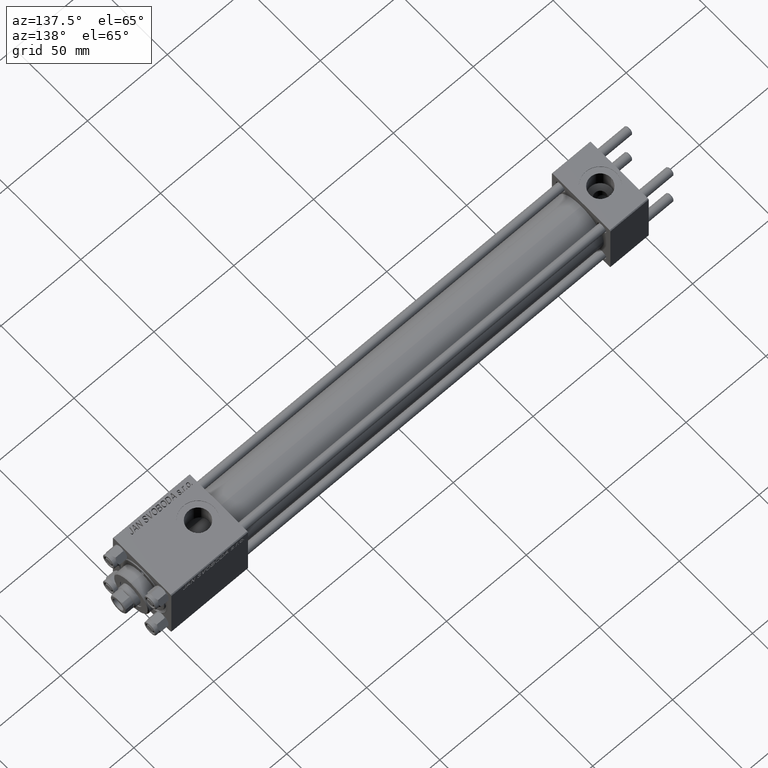
[diagram: clean part render]
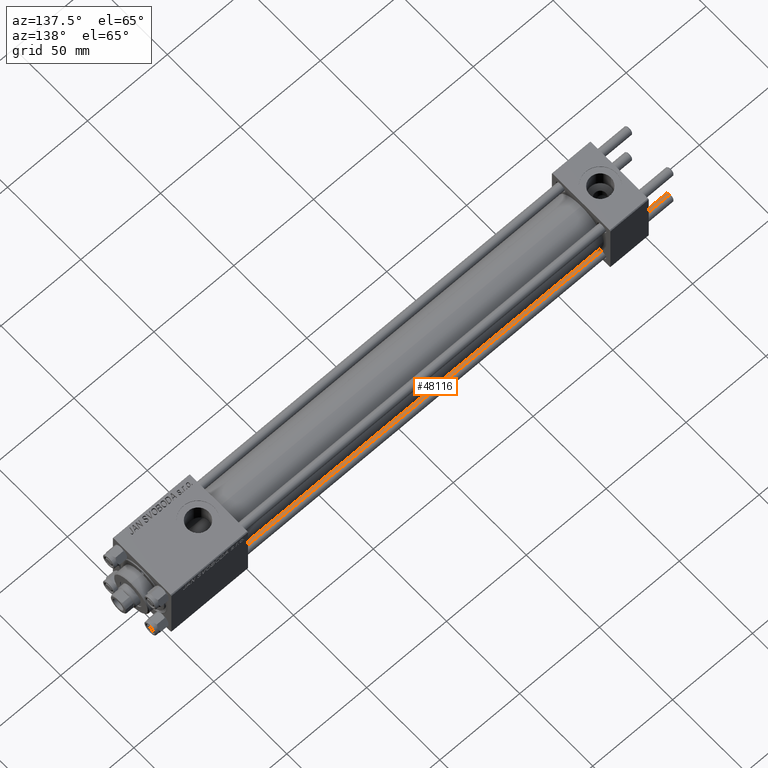
[diagram: same view with one face highlighted and labeled with its STEP entity id]
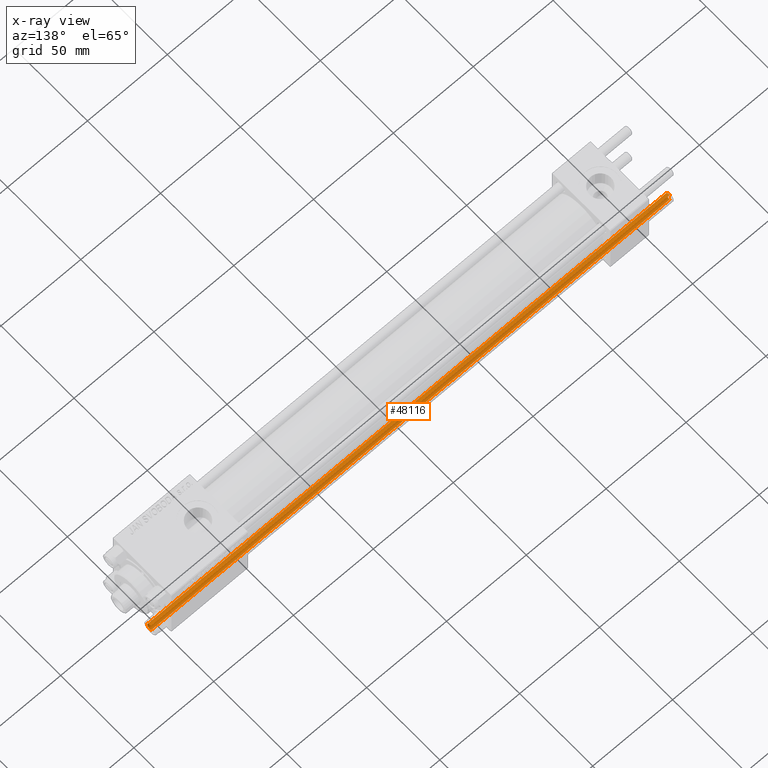
[diagram: x-ray of the same camera — body ghosted, the highlighted face saturated]
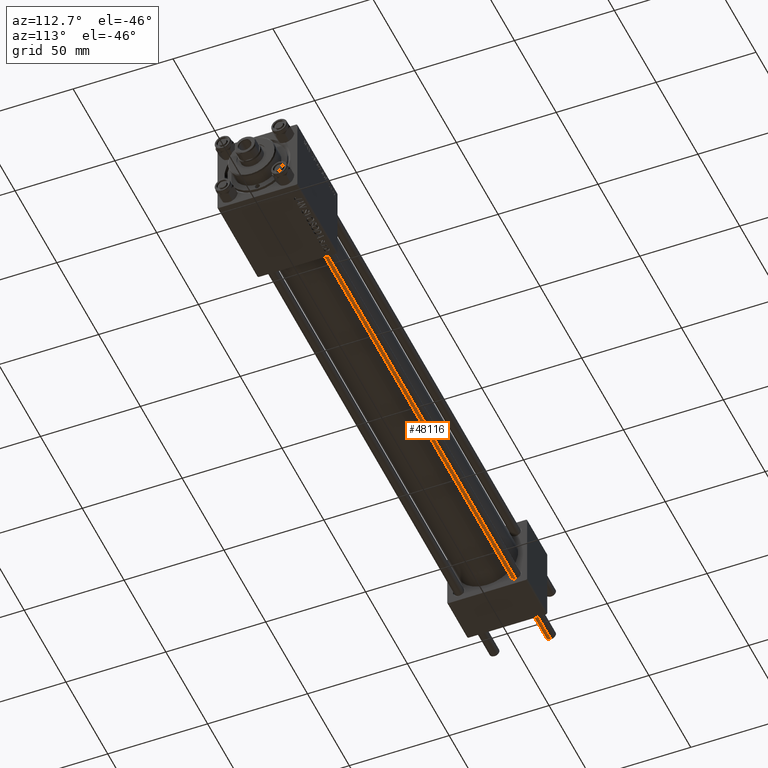
[diagram: same view with one face highlighted and labeled with its STEP entity id]
A machine part, auxiliary view. The second image highlights one B-rep face of the part: STEP entity #48116.
The next image is the same camera in x-ray: the body ghosted, the highlighted face saturated — about 0% of this face is hidden behind the body in this view.
A second angle (auxiliary view) of the same face is appended — the face is thin or edge-on in the first view.
In plain terms, the highlighted cylindrical surface (edge-blend (fillet) strip) has radius 2.5 mm, axis along (1, 0, -0).
Its self-contained STEP definition (entity closure, byte-faithful):
#1363 = EDGE_LOOP ( 'NONE', ( #3659, #15860, #46752, #2845 ) ) ;
#1957 = DIRECTION ( 'NONE',  ( -0.000000000000000000, -0.000000000000000000, -1.000000000000000000 ) ) ;
#2845 = ORIENTED_EDGE ( 'NONE', *, *, #13820, .T. ) ;
#3659 = ORIENTED_EDGE ( 'NONE', *, *, #48974, .F. ) ;
#4639 = DIRECTION ( 'NONE',  ( -0.000000000000000000, -0.000000000000000000, -1.000000000000000000 ) ) ;
#6271 = DIRECTION ( 'NONE',  ( 0.000000000000000000, 0.000000000000000000, -1.000000000000000000 ) ) ;
#8417 = FACE_OUTER_BOUND ( 'NONE', #1363, .T. ) ;
#8930 = CIRCLE ( 'NONE', #29886, 2.500000000000000000 ) ;
#9049 = LINE ( 'NONE', #28000, #12536 ) ;
#10930 = CARTESIAN_POINT ( 'NONE',  ( 2.500000000000000000, 3.061616997868383141E-16, 0.4999999999999449329 ) ) ;
#11196 = CIRCLE ( 'NONE', #45839, 2.500000000000000000 ) ;
#12536 = VECTOR ( 'NONE', #1957, 1000.000000000000000 ) ;
#13120 = VERTEX_POINT ( 'NONE', #18130 ) ;
#13820 = EDGE_CURVE ( 'NONE', #32420, #27133, #11196, .T. ) ;
#14891 = CARTESIAN_POINT ( 'NONE',  ( 2.500000000000000000, 3.061616997868383141E-16, 325.5000000000000000 ) ) ;
#15860 = ORIENTED_EDGE ( 'NONE', *, *, #17940, .T. ) ;
#17940 = EDGE_CURVE ( 'NONE', #27022, #13120, #8930, .T. ) ;
#18130 = CARTESIAN_POINT ( 'NONE',  ( -2.500000000000000000, 0.000000000000000000, 325.5000000000000000 ) ) ;
#22312 = DIRECTION ( 'NONE',  ( 1.000000000000000000, 0.000000000000000000, 0.000000000000000000 ) ) ;
#22498 = VECTOR ( 'NONE', #48901, 1000.000000000000000 ) ;
#22697 = CARTESIAN_POINT ( 'NONE',  ( 0.000000000000000000, 0.000000000000000000, 325.5000000000000000 ) ) ;
#27022 = VERTEX_POINT ( 'NONE', #14891 ) ;
#27133 = VERTEX_POINT ( 'NONE', #10930 ) ;
#28000 = CARTESIAN_POINT ( 'NONE',  ( 2.500000000000000000, 3.061616997868383141E-16, 326.0000000000000000 ) ) ;
#28119 = CYLINDRICAL_SURFACE ( 'NONE', #29440, 2.500000000000000000 ) ;
#28635 = EDGE_CURVE ( 'NONE', #13120, #32420, #29453, .T. ) ;
#29391 = DIRECTION ( 'NONE',  ( -0.000000000000000000, -0.000000000000000000, 1.000000000000000000 ) ) ;
#29440 = AXIS2_PLACEMENT_3D ( 'NONE', #47310, #4639, #31654 ) ;
#29453 = LINE ( 'NONE', #32735, #22498 ) ;
#29886 = AXIS2_PLACEMENT_3D ( 'NONE', #22697, #6271, #38097 ) ;
#31654 = DIRECTION ( 'NONE',  ( -1.000000000000000000, 0.000000000000000000, 0.000000000000000000 ) ) ;
#32420 = VERTEX_POINT ( 'NONE', #36433 ) ;
#32735 = CARTESIAN_POINT ( 'NONE',  ( -2.500000000000000000, 0.000000000000000000, 326.0000000000000000 ) ) ;
#36433 = CARTESIAN_POINT ( 'NONE',  ( -2.500000000000000000, 0.000000000000000000, 0.4999999999999449329 ) ) ;
#38097 = DIRECTION ( 'NONE',  ( 1.000000000000000000, 0.000000000000000000, 0.000000000000000000 ) ) ;
#41503 = CARTESIAN_POINT ( 'NONE',  ( 0.000000000000000000, 0.000000000000000000, 0.4999999999999449329 ) ) ;
#45839 = AXIS2_PLACEMENT_3D ( 'NONE', #41503, #29391, #22312 ) ;
#46752 = ORIENTED_EDGE ( 'NONE', *, *, #28635, .T. ) ;
#47310 = CARTESIAN_POINT ( 'NONE',  ( 0.000000000000000000, 0.000000000000000000, 326.0000000000000000 ) ) ;
#48116 = ADVANCED_FACE ( 'NONE', ( #8417 ), #28119, .T. ) ;
#48901 = DIRECTION ( 'NONE',  ( -0.000000000000000000, -0.000000000000000000, -1.000000000000000000 ) ) ;
#48974 = EDGE_CURVE ( 'NONE', #27022, #27133, #9049, .T. ) ;